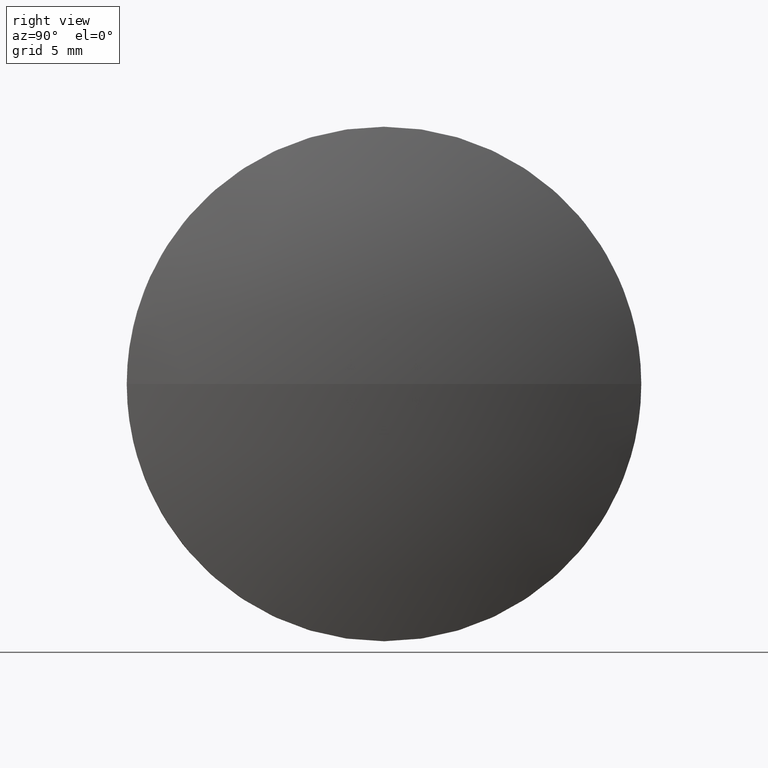
[diagram: clean part render]
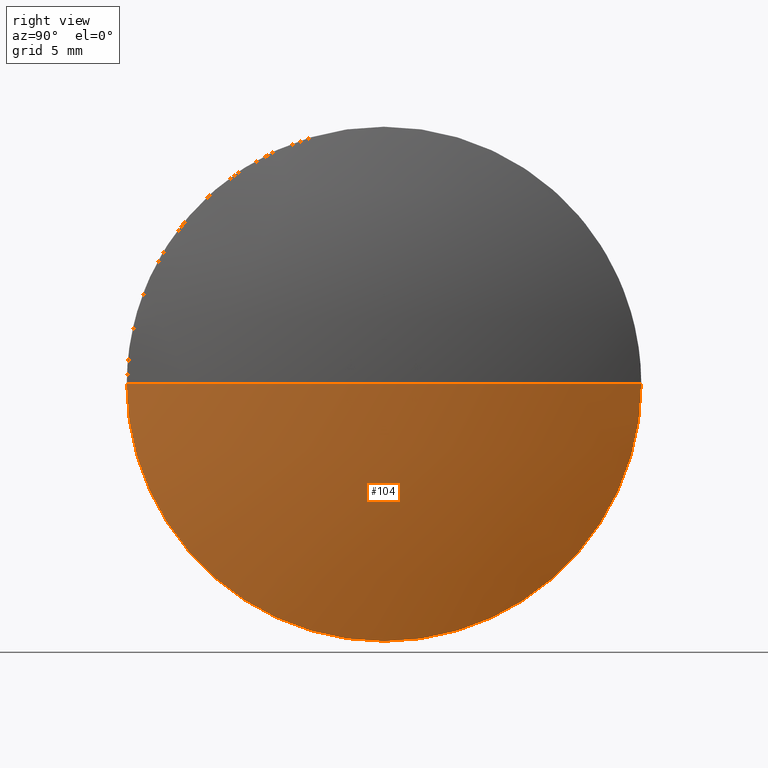
[diagram: same view with one face highlighted and labeled with its STEP entity id]
A machine part, right view. The second image highlights one B-rep face of the part: STEP entity #104.
In plain terms, the highlighted spherical surface has radius 39.3166 mm.
Its self-contained STEP definition (entity closure, byte-faithful):
#14 = DIRECTION ( 'NONE',  ( -1.000000000000000000, 0.0000000000000000000, 0.0000000000000000000 ) ) ;
#15 = VERTEX_POINT ( 'NONE', #80 ) ;
#16 = EDGE_CURVE ( 'NONE', #15, #52, #83, .T. ) ;
#17 = FACE_OUTER_BOUND ( 'NONE', #85, .T. ) ;
#22 = DIRECTION ( 'NONE',  ( -1.000000000000000000, -0.0000000000000000000, -0.0000000000000000000 ) ) ;
#23 = CIRCLE ( 'NONE', #31, 39.31656862745097700 ) ;
#24 = ORIENTED_EDGE ( 'NONE', *, *, #186, .F. ) ;
#25 = AXIS2_PLACEMENT_3D ( 'NONE', #101, #139, #14 ) ;
#30 = CARTESIAN_POINT ( 'NONE',  ( 702.2082137822092100, 248.6989515339254200, -12.49999999999998400 ) ) ;
#31 = AXIS2_PLACEMENT_3D ( 'NONE', #91, #169, #155 ) ;
#34 = CIRCLE ( 'NONE', #38, 12.49999999999998400 ) ;
#37 = DIRECTION ( 'NONE',  ( 0.0000000000000000000, -1.000000000000000000, 0.0000000000000000000 ) ) ;
#38 = AXIS2_PLACEMENT_3D ( 'NONE', #111, #22, #75 ) ;
#46 = CARTESIAN_POINT ( 'NONE',  ( 702.2082137822092100, 236.1989515339254800, 0.0000000000000000000 ) ) ;
#52 = VERTEX_POINT ( 'NONE', #30 ) ;
#65 = CIRCLE ( 'NONE', #25, 39.31656862745103400 ) ;
#71 = CARTESIAN_POINT ( 'NONE',  ( 704.2482137822092900, 248.6989515339255100, 0.0000000000000000000 ) ) ;
#72 = ORIENTED_EDGE ( 'NONE', *, *, #174, .F. ) ;
#75 = DIRECTION ( 'NONE',  ( 0.0000000000000000000, 0.0000000000000000000, 1.000000000000000000 ) ) ;
#80 = CARTESIAN_POINT ( 'NONE',  ( 702.2082137822092100, 261.1989515339254800, 1.530808498934184600E-015 ) ) ;
#82 = SPHERICAL_SURFACE ( 'NONE', #183, 39.31656862745099100 ) ;
#83 = CIRCLE ( 'NONE', #148, 12.49999999999998400 ) ;
#84 = CARTESIAN_POINT ( 'NONE',  ( 664.9316451547582600, 248.6989515339255100, 0.0000000000000000000 ) ) ;
#85 = EDGE_LOOP ( 'NONE', ( #72, #92, #24, #180 ) ) ;
#91 = CARTESIAN_POINT ( 'NONE',  ( 664.9316451547582600, 248.6989515339255100, 0.0000000000000000000 ) ) ;
#92 = ORIENTED_EDGE ( 'NONE', *, *, #167, .T. ) ;
#101 = CARTESIAN_POINT ( 'NONE',  ( 664.9316451547582600, 248.6989515339255100, 0.0000000000000000000 ) ) ;
#104 = ADVANCED_FACE ( 'NONE', ( #17 ), #82, .T. ) ;
#111 = CARTESIAN_POINT ( 'NONE',  ( 702.2082137822092100, 248.6989515339254200, 0.0000000000000000000 ) ) ;
#122 = VERTEX_POINT ( 'NONE', #71 ) ;
#134 = VERTEX_POINT ( 'NONE', #46 ) ;
#135 = DIRECTION ( 'NONE',  ( 0.0000000000000000000, 0.0000000000000000000, 1.000000000000000000 ) ) ;
#139 = DIRECTION ( 'NONE',  ( 0.0000000000000000000, 0.0000000000000000000, -1.000000000000000000 ) ) ;
#148 = AXIS2_PLACEMENT_3D ( 'NONE', #164, #172, #185 ) ;
#155 = DIRECTION ( 'NONE',  ( 0.0000000000000000000, -1.000000000000000000, -1.224646799147353700E-016 ) ) ;
#164 = CARTESIAN_POINT ( 'NONE',  ( 702.2082137822092100, 248.6989515339254200, 0.0000000000000000000 ) ) ;
#167 = EDGE_CURVE ( 'NONE', #122, #134, #65, .T. ) ;
#169 = DIRECTION ( 'NONE',  ( 0.0000000000000000000, -1.224646799147353200E-016, 1.000000000000000000 ) ) ;
#172 = DIRECTION ( 'NONE',  ( -1.000000000000000000, -0.0000000000000000000, -0.0000000000000000000 ) ) ;
#174 = EDGE_CURVE ( 'NONE', #122, #15, #23, .T. ) ;
#180 = ORIENTED_EDGE ( 'NONE', *, *, #16, .F. ) ;
#183 = AXIS2_PLACEMENT_3D ( 'NONE', #84, #135, #37 ) ;
#185 = DIRECTION ( 'NONE',  ( 0.0000000000000000000, 0.0000000000000000000, 1.000000000000000000 ) ) ;
#186 = EDGE_CURVE ( 'NONE', #52, #134, #34, .T. ) ;